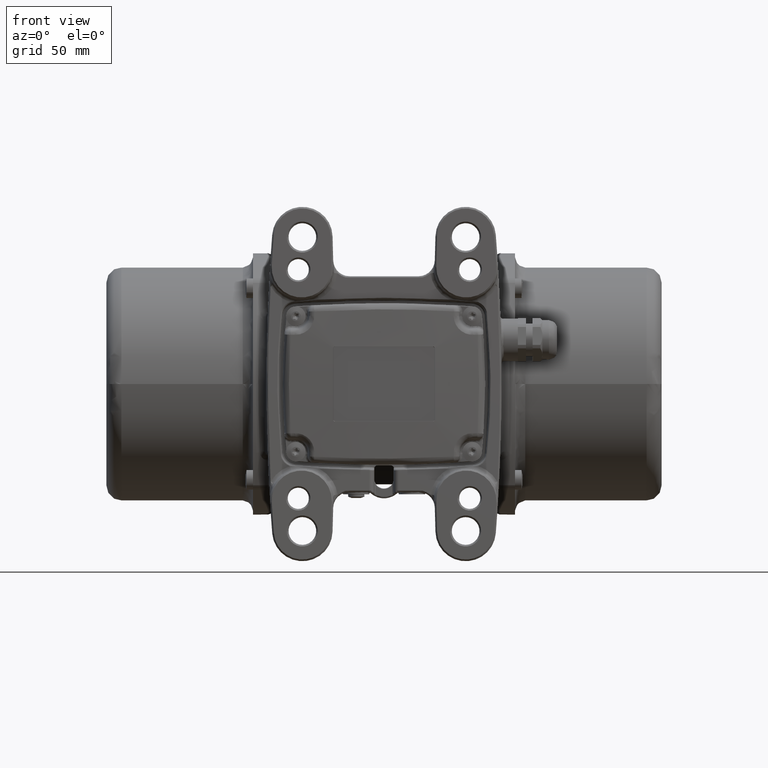
[diagram: clean part render]
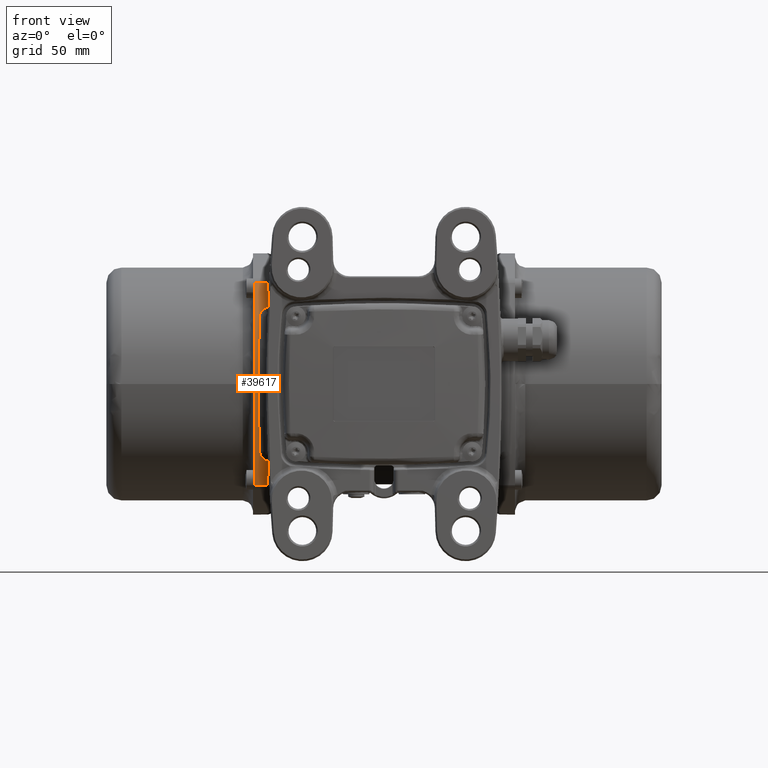
[diagram: same view with one face highlighted and labeled with its STEP entity id]
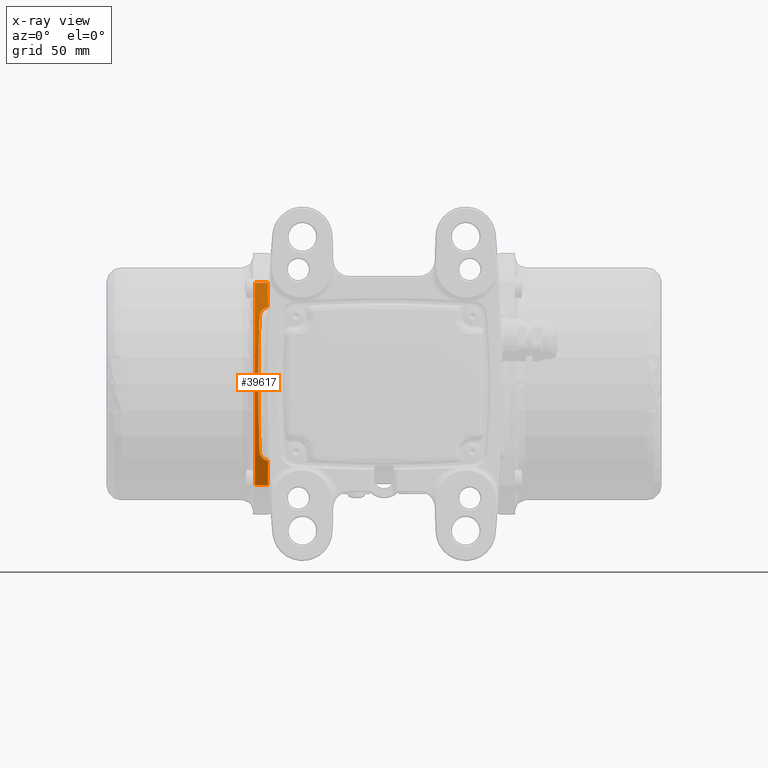
[diagram: x-ray of the same camera — body ghosted, the highlighted face saturated]
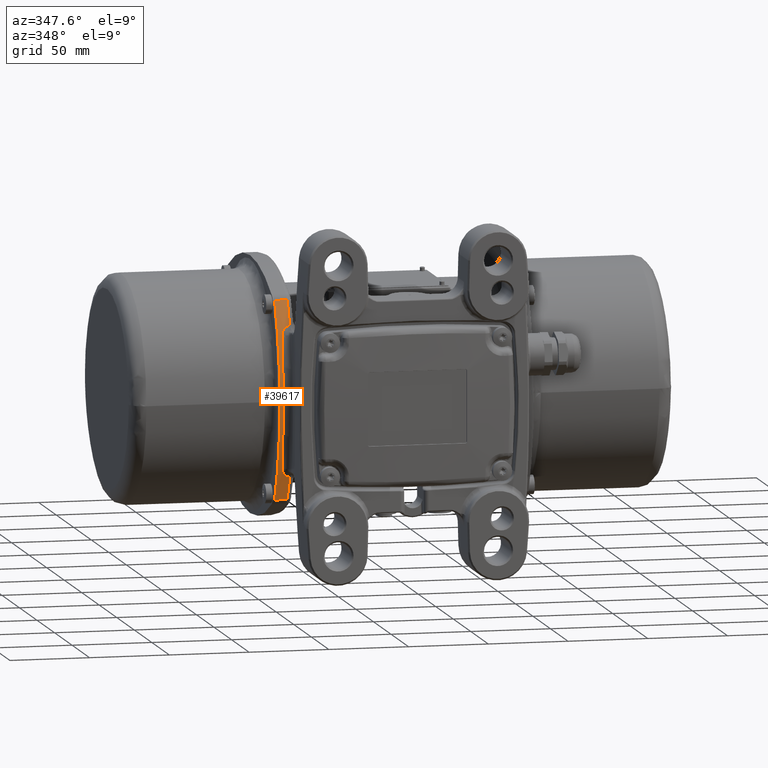
[diagram: same view with one face highlighted and labeled with its STEP entity id]
A machine part, front view. The second image highlights one B-rep face of the part: STEP entity #39617.
The next image is the same camera in x-ray: the body ghosted, the highlighted face saturated — about 0% of this face is hidden behind the body in this view.
A second angle (auxiliary view) of the same face is appended — the face is thin or edge-on in the first view.
In plain terms, the highlighted cylindrical surface (partial cylindrical patch) has radius 134.5 mm, axis along (1, 0, -0).
Its self-contained STEP definition (entity closure, byte-faithful):
#948 = CYLINDRICAL_SURFACE ( 'NONE', #98967, 134.5000000000000000 ) ;
#967 = CARTESIAN_POINT ( 'NONE',  ( -76.91392670052030700, 35.70437901176586600, 13.85882122319814900 ) ) ;
#2539 = DIRECTION ( 'NONE',  ( -1.000000000000000000, -9.714451465470119700E-017, 5.478908119293819400E-017 ) ) ;
#3368 = CARTESIAN_POINT ( 'NONE',  ( -76.77302171470431300, 36.86758822173489800, -22.34302202964377300 ) ) ;
#5842 = VERTEX_POINT ( 'NONE', #100650 ) ;
#6630 = ORIENTED_EDGE ( 'NONE', *, *, #54177, .F. ) ;
#7685 = CARTESIAN_POINT ( 'NONE',  ( -76.93452585162684400, 35.53520020178806500, 12.11374425792515600 ) ) ;
#9336 = ORIENTED_EDGE ( 'NONE', *, *, #11544, .T. ) ;
#9489 = FACE_OUTER_BOUND ( 'NONE', #80958, .T. ) ;
#10455 = CARTESIAN_POINT ( 'NONE',  ( -71.76515086793875800, 43.46821558706111000, 46.97087024868606900 ) ) ;
#11544 = EDGE_CURVE ( 'NONE', #85885, #87500, #129359, .T. ) ;
#11665 = CARTESIAN_POINT ( 'NONE',  ( -71.15591171405651500, 50.09639030498980400, 61.91145283226460100 ) ) ;
#11980 = CARTESIAN_POINT ( 'NONE',  ( -72.75547409472012800, 43.30311113882943600, -46.52523251322962500 ) ) ;
#12174 = CARTESIAN_POINT ( 'NONE',  ( -76.20127448214626000, 41.69116921613376500, -41.90095515238734000 ) ) ;
#13884 = CARTESIAN_POINT ( 'NONE',  ( -71.04767305729460200, 43.52172419425159700, 47.11394735148109400 ) ) ;
#16227 = CARTESIAN_POINT ( 'NONE',  ( -76.78761690682171100, 36.74678579697825100, -21.60817428802367600 ) ) ;
#16869 = CARTESIAN_POINT ( 'NONE',  ( -73.66860951000458600, 43.09870284734098100, 45.96709335465880700 ) ) ;
#18169 = CARTESIAN_POINT ( 'NONE',  ( -76.80352275695871400, 36.61520381224416100, 20.78181340012174200 ) ) ;
#19079 = CARTESIAN_POINT ( 'NONE',  ( -75.66823197478187500, 42.24625810015600500, 43.55288645182484700 ) ) ;
#20536 = CARTESIAN_POINT ( 'NONE',  ( -76.99968288333438700, 35.00257391730706800, -0.9375589523458579500 ) ) ;
#22891 = CARTESIAN_POINT ( 'NONE',  ( -73.67817464951535600, 43.09927855175380500, -45.96916931656399200 ) ) ;
#23287 = CARTESIAN_POINT ( 'NONE',  ( -73.81019552127679600, 43.05993638845461600, 45.86038126619998700 ) ) ;
#24862 = CARTESIAN_POINT ( 'NONE',  ( -77.00023204323643700, 34.99810627503568800, 3.396384500327738600 ) ) ;
#26967 = CARTESIAN_POINT ( 'NONE',  ( -76.99150487700099200, 35.06907542110919000, -4.396321037840509800 ) ) ;
#27214 = CARTESIAN_POINT ( 'NONE',  ( -74.08725597230319700, 42.97757411249731500, -45.63266346724012100 ) ) ;
#27607 = CARTESIAN_POINT ( 'NONE',  ( -71.04767305729460200, 43.52172419425159700, 47.11394735148109400 ) ) ;
#31312 = CARTESIAN_POINT ( 'NONE',  ( -76.79977945394880100, 36.64616447054872600, -20.97882749188410800 ) ) ;
#31359 = CARTESIAN_POINT ( 'NONE',  ( -72.99678042986445800, 43.25568711156601200, -46.39639816770001300 ) ) ;
#33387 = CARTESIAN_POINT ( 'NONE',  ( -76.91705464149131900, 35.67842957691770100, -13.93387713415463800 ) ) ;
#33649 = CARTESIAN_POINT ( 'NONE',  ( -76.22746874981530100, 41.46662355499450600, -41.20321002169044500 ) ) ;
#36219 = CARTESIAN_POINT ( 'NONE',  ( -72.43866790602352500, 43.37382069436407100, 46.71816010946525200 ) ) ;
#36282 = AXIS2_PLACEMENT_3D ( 'NONE', #108239, #125417, #104022 ) ;
#37150 = DIRECTION ( 'NONE',  ( -1.000000000000000000, -9.714451465470119700E-017, 5.478908119293819400E-017 ) ) ;
#38680 = CARTESIAN_POINT ( 'NONE',  ( -71.15591171405651500, 50.09639030499030100, -61.91145283226500600 ) ) ;
#39586 = CARTESIAN_POINT ( 'NONE',  ( -76.80663549676641800, 36.58946211071217600, 20.61654564393510500 ) ) ;
#39617 = ADVANCED_FACE ( 'NONE', ( #9489 ), #948, .T. ) ;
#40421 = CARTESIAN_POINT ( 'NONE',  ( -75.23997587525363400, 42.50812202107958600, 44.30956565646369000 ) ) ;
#40547 = CARTESIAN_POINT ( 'NONE',  ( -71.11564863839259900, 47.59107998860242400, -57.07966353484192000 ) ) ;
#40745 = B_SPLINE_CURVE_WITH_KNOTS ( 'NONE', 3,
 ( #44142, #93472, #132009, #127823, #104209, #74051, #99906, #3368, #16227, #106306, #91244, #31312, #119159, #84803, #33387, #54839, #108426, #26967, #101990, #82695, #20536, #48466, #24862, #123461, #7685, #967, #110339, #125409, #52482, #106106, #118960, #39586, #48269, #18169, #65346, #65243, #82404 ),
 .UNSPECIFIED., .F., .F.,
 ( 4, 2, 2, 1, 1, 1, 1, 2, 2, 2, 2, 1, 2, 2, 2, 2, 1, 1, 1, 1, 2, 2, 4 ),
 ( 0.0000000000000000000, 0.1249999999999968400, 0.1874999999999953900, 0.2187499999999946400, 0.2343749999999942300, 0.2421874999999940900, 0.2460937499999940900, 0.2480468749999941400, 0.2499999999999941700, 0.3749999999999980600, 0.4375000000000000000, 0.4687500000000010000, 0.4843750000000015000, 0.5000000000000020000, 0.6250000000000057700, 0.6875000000000076600, 0.7187500000000086600, 0.7343750000000092100, 0.7421875000000094400, 0.7460937500000095500, 0.7480468750000094400, 0.7500000000000094400, 1.000000000000000000 ),
 .UNSPECIFIED. ) ;
#42647 = CARTESIAN_POINT ( 'NONE',  ( -75.14275740864229600, 42.55871707789256700, 44.45428035569164400 ) ) ;
#43937 = ORIENTED_EDGE ( 'NONE', *, *, #132489, .T. ) ;
#44142 = CARTESIAN_POINT ( 'NONE',  ( -76.22746874981530100, 41.46662355499450600, -41.20321002169044500 ) ) ;
#46490 = CARTESIAN_POINT ( 'NONE',  ( -76.05822773349352400, 41.91450205849641000, -42.57539056116569800 ) ) ;
#46876 = CARTESIAN_POINT ( 'NONE',  ( -74.82617060702374100, 42.70608894317467700, 44.87287070290076900 ) ) ;
#47499 = B_SPLINE_CURVE_WITH_KNOTS ( 'NONE', 3,
 ( #123414, #89102, #65491, #110589, #127783, #11980, #59208, #31359, #110696, #22891, #27214, #61481, #69962, #104343, #63583, #110786, #46490, #12174, #33649 ),
 .UNSPECIFIED., .F., .F.,
 ( 4, 2, 1, 2, 2, 2, 2, 2, 2, 4 ),
 ( 0.0000000000000000000, 0.1250000000000040000, 0.1875000000000058300, 0.2187500000000051300, 0.2500000000000044400, 0.3750000000000069400, 0.4375000000000071600, 0.5000000000000073300, 0.7500000000000037700, 1.000000000000000000 ),
 .UNSPECIFIED. ) ;
#48269 = CARTESIAN_POINT ( 'NONE',  ( -76.80458736861376700, 36.60639932556802000, 20.72544175869099100 ) ) ;
#48466 = CARTESIAN_POINT ( 'NONE',  ( -76.99996817832205000, 35.00025973059369000, -0.5080040732367029400 ) ) ;
#51691 = ORIENTED_EDGE ( 'NONE', *, *, #118168, .T. ) ;
#51948 = CARTESIAN_POINT ( 'NONE',  ( -71.04767305729301100, 43.52172419425304600, -47.11394735148430600 ) ) ;
#52482 = CARTESIAN_POINT ( 'NONE',  ( -76.83052113839285400, 36.39202574965603500, 19.30949803640759700 ) ) ;
#54177 = EDGE_CURVE ( 'NONE', #85885, #117759, #81425, .T. ) ;
#54626 = EDGE_CURVE ( 'NONE', #70861, #5842, #40745, .T. ) ;
#54839 = CARTESIAN_POINT ( 'NONE',  ( -76.96661035374111700, 35.27224224705878400, -8.728571431806141600 ) ) ;
#55471 = CARTESIAN_POINT ( 'NONE',  ( -75.51235253057818400, 42.35337461314426800, 43.86438621301379500 ) ) ;
#56297 = ORIENTED_EDGE ( 'NONE', *, *, #59380, .F. ) ;
#57624 = VERTEX_POINT ( 'NONE', #38680 ) ;
#58858 = CARTESIAN_POINT ( 'NONE',  ( -90.00000000000000000, 169.5000000000000000, 2.134900303787539700E-013 ) ) ;
#59066 = CARTESIAN_POINT ( 'NONE',  ( -71.15591171405651500, 50.09639030498980400, 61.91145283226460100 ) ) ;
#59208 = CARTESIAN_POINT ( 'NONE',  ( -72.91609490870287400, 43.27205604064824500, -46.44091065476070700 ) ) ;
#59380 = EDGE_CURVE ( 'NONE', #57624, #80359, #105481, .T. ) ;
#60044 = CIRCLE ( 'NONE', #36282, 134.5000000000000000 ) ;
#60114 = B_SPLINE_CURVE_WITH_KNOTS ( 'NONE', 3,
 ( #115455, #100531, #128357, #19079, #55471, #40421, #42647, #70368, #46876, #76892, #111274, #23287, #16869, #117656, #91892, #36219, #10455, #27607 ),
 .UNSPECIFIED., .F., .F.,
 ( 4, 2, 2, 2, 2, 2, 2, 2, 4 ),
 ( 0.0000000000000000000, 0.2500000000000001100, 0.3750000000000020500, 0.4375000000000027200, 0.5000000000000033300, 0.6250000000000058800, 0.6875000000000045500, 0.7500000000000032200, 1.000000000000000000 ),
 .UNSPECIFIED. ) ;
#61481 = CARTESIAN_POINT ( 'NONE',  ( -74.21877553927039600, 42.93516764047607400, -45.51494657360256500 ) ) ;
#63583 = CARTESIAN_POINT ( 'NONE',  ( -75.17585973222362800, 42.56338122276418500, -44.47095800562067300 ) ) ;
#65243 = CARTESIAN_POINT ( 'NONE',  ( -76.48339714103440200, 39.27093734366866300, 34.38041347011588300 ) ) ;
#65346 = CARTESIAN_POINT ( 'NONE',  ( -76.67508325840637400, 37.67748042109661100, 27.55676832613750400 ) ) ;
#65491 = CARTESIAN_POINT ( 'NONE',  ( -71.75650269547178100, 43.45777107569608000, -46.94278324346353100 ) ) ;
#69962 = CARTESIAN_POINT ( 'NONE',  ( -74.47213292528063300, 42.84677042558919200, -45.26838400212538000 ) ) ;
#70368 = CARTESIAN_POINT ( 'NONE',  ( -74.93546797907987400, 42.65785820354079000, 44.73637687989374000 ) ) ;
#70861 = VERTEX_POINT ( 'NONE', #113550 ) ;
#71664 = CARTESIAN_POINT ( 'NONE',  ( -71.07942695592743100, 45.40349099349014500, 52.14565666181741200 ) ) ;
#74051 = CARTESIAN_POINT ( 'NONE',  ( -76.71412402299171200, 37.35602505773230300, -25.07907418335895500 ) ) ;
#75386 = ORIENTED_EDGE ( 'NONE', *, *, #54626, .T. ) ;
#76892 = CARTESIAN_POINT ( 'NONE',  ( -74.47435820097632600, 42.84949412654607700, 45.27671572474847700 ) ) ;
#79009 = CARTESIAN_POINT ( 'NONE',  ( -79.00000000000000000, 50.09639030499020200, -61.91145283226500600 ) ) ;
#79051 = CARTESIAN_POINT ( 'NONE',  ( -71.04767305729301100, 43.52172419425304600, -47.11394735148430600 ) ) ;
#80359 = VERTEX_POINT ( 'NONE', #79009 ) ;
#80958 = EDGE_LOOP ( 'NONE', ( #111587, #43937, #75386, #95015, #6630, #9336, #51691, #56297 ) ) ;
#81425 = B_SPLINE_CURVE_WITH_KNOTS ( 'NONE', 3,
 ( #11665, #99553, #71664, #13884 ),
 .UNSPECIFIED., .F., .F.,
 ( 4, 4 ),
 ( 0.0000000000000000000, 1.000000000000000000 ),
 .UNSPECIFIED. ) ;
#82404 = CARTESIAN_POINT ( 'NONE',  ( -76.22746874981530100, 41.46662355499439900, 41.20321002169049500 ) ) ;
#82695 = CARTESIAN_POINT ( 'NONE',  ( -76.99859943079103200, 35.01137202052282800, -1.801550403502100200 ) ) ;
#84803 = CARTESIAN_POINT ( 'NONE',  ( -76.86761559637643900, 36.08509505595038300, -17.40762347202992500 ) ) ;
#85885 = VERTEX_POINT ( 'NONE', #59066 ) ;
#87500 = VERTEX_POINT ( 'NONE', #131762 ) ;
#89102 = CARTESIAN_POINT ( 'NONE',  ( -71.40761674174028400, 43.49487993407638000, -47.04216821141864800 ) ) ;
#91244 = CARTESIAN_POINT ( 'NONE',  ( -76.79777254280571700, 36.66276529418669800, -21.08368785420122600 ) ) ;
#91892 = CARTESIAN_POINT ( 'NONE',  ( -73.22561323844009000, 43.20719699192716900, 46.26431948872498600 ) ) ;
#92920 = CARTESIAN_POINT ( 'NONE',  ( -90.00000000000000000, 50.09639030498980400, 61.91145283226450100 ) ) ;
#93472 = CARTESIAN_POINT ( 'NONE',  ( -76.35518283684709200, 40.37092620836558200, -37.79847940053488000 ) ) ;
#94796 = CARTESIAN_POINT ( 'NONE',  ( -71.04767305729460200, 43.52172419425159700, 47.11394735148109400 ) ) ;
#95015 = ORIENTED_EDGE ( 'NONE', *, *, #97981, .T. ) ;
#95372 = DIRECTION ( 'NONE',  ( 1.000000000000000000, 9.714451465470119700E-017, -5.478908119293819400E-017 ) ) ;
#96475 = VERTEX_POINT ( 'NONE', #51948 ) ;
#97981 = EDGE_CURVE ( 'NONE', #5842, #117759, #60114, .T. ) ;
#98967 = AXIS2_PLACEMENT_3D ( 'NONE', #58858, #95372, #114621 ) ;
#98986 = CARTESIAN_POINT ( 'NONE',  ( -90.00000000000000000, 50.09639030499020200, -61.91145283226500600 ) ) ;
#99553 = CARTESIAN_POINT ( 'NONE',  ( -71.11564863839160500, 47.59107998860123000, 57.07966353484013700 ) ) ;
#99906 = CARTESIAN_POINT ( 'NONE',  ( -76.74251897659208100, 37.12027887988185900, -23.81462674153491200 ) ) ;
#100531 = CARTESIAN_POINT ( 'NONE',  ( -76.20127942304441100, 41.69112571153054600, 41.90081996774459600 ) ) ;
#100566 = CARTESIAN_POINT ( 'NONE',  ( -71.07942695592696200, 45.40349099349172900, -52.14565666182068100 ) ) ;
#100650 = CARTESIAN_POINT ( 'NONE',  ( -76.22746874981530100, 41.46662355499439900, 41.20321002169049500 ) ) ;
#101990 = CARTESIAN_POINT ( 'NONE',  ( -76.99620541274391900, 35.03081996401102300, -3.098133080345672100 ) ) ;
#104022 = DIRECTION ( 'NONE',  ( -1.031805784967617600E-016, 0.0000000000000000000, 1.000000000000000000 ) ) ;
#104209 = CARTESIAN_POINT ( 'NONE',  ( -76.65433444978526700, 37.85344812582663100, -27.61151356570263000 ) ) ;
#104343 = CARTESIAN_POINT ( 'NONE',  ( -74.59474467869991100, 42.80046393237965000, -45.13864908294424800 ) ) ;
#105481 = LINE ( 'NONE', #98986, #132579 ) ;
#106106 = CARTESIAN_POINT ( 'NONE',  ( -76.81675070605389500, 36.50582957654560100, 20.07201017643373600 ) ) ;
#106306 = CARTESIAN_POINT ( 'NONE',  ( -76.79475045864569400, 36.68776482263752600, -21.24099635157372000 ) ) ;
#108239 = CARTESIAN_POINT ( 'NONE',  ( -79.00000000000000000, 169.5000000000000000, 2.128873504856314800E-013 ) ) ;
#108426 = CARTESIAN_POINT ( 'NONE',  ( -76.97902844858732900, 35.17080148880121000, -6.994348758227701500 ) ) ;
#110339 = CARTESIAN_POINT ( 'NONE',  ( -76.87681304653978000, 36.01002922410360400, 16.47570886430291300 ) ) ;
#110589 = CARTESIAN_POINT ( 'NONE',  ( -72.26324503060948200, 43.38700496977133300, -46.75218794043612300 ) ) ;
#110696 = CARTESIAN_POINT ( 'NONE',  ( -73.38609027180847000, 43.17305718536559300, -46.17131482691029700 ) ) ;
#110786 = CARTESIAN_POINT ( 'NONE',  ( -75.53842927422044800, 42.35664982403263700, -43.87814572709916000 ) ) ;
#111274 = CARTESIAN_POINT ( 'NONE',  ( -74.22036442953958600, 42.93810183408453400, 45.52354288202845100 ) ) ;
#111587 = ORIENTED_EDGE ( 'NONE', *, *, #130379, .F. ) ;
#113550 = CARTESIAN_POINT ( 'NONE',  ( -76.22746874981530100, 41.46662355499450600, -41.20321002169044500 ) ) ;
#114621 = DIRECTION ( 'NONE',  ( -1.031805784967617600E-016, 0.0000000000000000000, 1.000000000000000000 ) ) ;
#115455 = CARTESIAN_POINT ( 'NONE',  ( -76.22746874981530100, 41.46662355499439900, 41.20321002169049500 ) ) ;
#115583 = CARTESIAN_POINT ( 'NONE',  ( -71.15591171405651500, 50.09639030499030100, -61.91145283226500600 ) ) ;
#117068 = VECTOR ( 'NONE', #37150, 1000.000000000000000 ) ;
#117656 = CARTESIAN_POINT ( 'NONE',  ( -73.37571140375760600, 43.17246166404096600, 46.16941250793132000 ) ) ;
#117759 = VERTEX_POINT ( 'NONE', #94796 ) ;
#118168 = EDGE_CURVE ( 'NONE', #87500, #80359, #60044, .T. ) ;
#118960 = CARTESIAN_POINT ( 'NONE',  ( -76.80969555046550600, 36.56415825648704000, 20.45319607198669900 ) ) ;
#119159 = CARTESIAN_POINT ( 'NONE',  ( -76.80074588282268200, 36.63817076405879900, -20.92814702719152500 ) ) ;
#122318 = B_SPLINE_CURVE_WITH_KNOTS ( 'NONE', 3,
 ( #79051, #100566, #40547, #115583 ),
 .UNSPECIFIED., .F., .F.,
 ( 4, 4 ),
 ( 0.0000000000000000000, 1.000000000000000000 ),
 .UNSPECIFIED. ) ;
#123414 = CARTESIAN_POINT ( 'NONE',  ( -71.04767305729301100, 43.52172419425304600, -47.11394735148430600 ) ) ;
#123461 = CARTESIAN_POINT ( 'NONE',  ( -76.98389345030557300, 35.13058039242555000, 6.881178242804564200 ) ) ;
#125409 = CARTESIAN_POINT ( 'NONE',  ( -76.85670248771937500, 36.17582357763862400, 17.78397008843980500 ) ) ;
#125417 = DIRECTION ( 'NONE',  ( 1.000000000000000000, 9.714451465470119700E-017, -5.478908119293819400E-017 ) ) ;
#127783 = CARTESIAN_POINT ( 'NONE',  ( -72.51246954931342300, 43.34784876829085200, -46.64650989354516500 ) ) ;
#127823 = CARTESIAN_POINT ( 'NONE',  ( -76.61047517964016200, 38.21964117162640000, -29.30453823178891100 ) ) ;
#128357 = CARTESIAN_POINT ( 'NONE',  ( -76.05875532935481000, 41.91401275943333400, 42.57394558929833300 ) ) ;
#129359 = LINE ( 'NONE', #92920, #117068 ) ;
#130379 = EDGE_CURVE ( 'NONE', #96475, #57624, #122318, .T. ) ;
#131762 = CARTESIAN_POINT ( 'NONE',  ( -79.00000000000000000, 50.09639030498980400, 61.91145283226450100 ) ) ;
#132009 = CARTESIAN_POINT ( 'NONE',  ( -76.46689870518230200, 39.42497188669572900, -34.39318772173867700 ) ) ;
#132489 = EDGE_CURVE ( 'NONE', #96475, #70861, #47499, .T. ) ;
#132579 = VECTOR ( 'NONE', #2539, 1000.000000000000000 ) ;